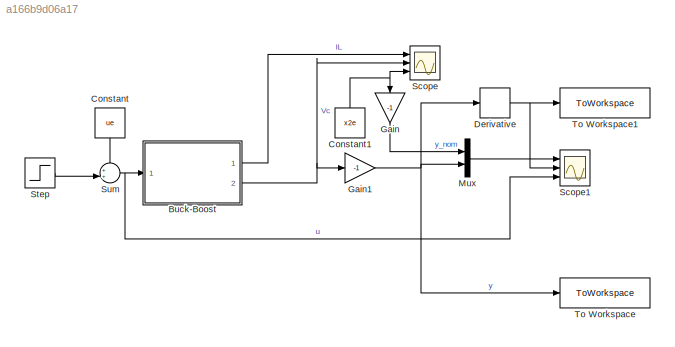
MODEL slx_a166b9d06a17
KIND model
CONFIG AbsTol = auto
CONFIG EnableMultiTasking = off
CONFIG FixedStep = time_step
CONFIG MaxStep = auto
CONFIG MinStep = auto
CONFIG RelTol = 1e-3
CONFIG SampleTimeConstraint = Unconstrained
CONFIG Solver = FixedStepAuto
CONFIG SolverName = FixedStepAuto
CONFIG StartTime = 0.0
CONFIG StopTime = sim_duration
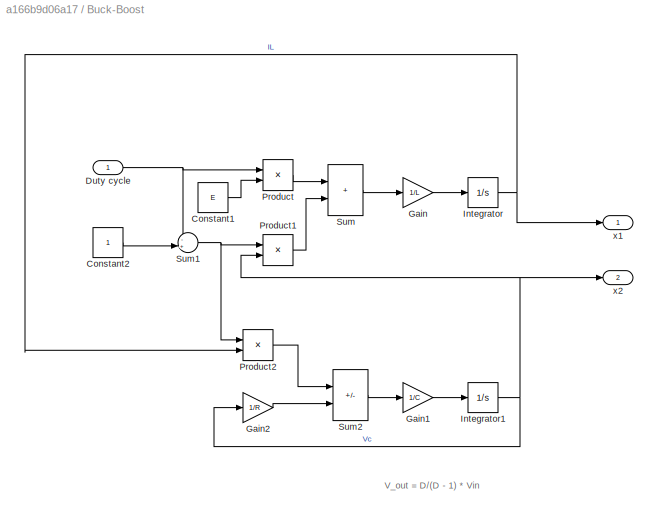
BLOCK [SubSystem] Buck-Boost
  Ports = [1, 2]
  RequestExecContextInheritance = off
BLOCK [Constant] Buck-Boost/Constant1
  Value = E
BLOCK [Constant] Buck-Boost/Constant2
BLOCK [Inport] Buck-Boost/Duty cycle
BLOCK [Gain] Buck-Boost/Gain
  Gain = 1/L
BLOCK [Gain] Buck-Boost/Gain1
  Gain = 1/C
BLOCK [Gain] Buck-Boost/Gain2
  Gain = 1/R
BLOCK [Integrator] Buck-Boost/Integrator
  Ports = [1, 1]
BLOCK [Integrator] Buck-Boost/Integrator1
  Ports = [1, 1]
BLOCK [Product] Buck-Boost/Product
  Ports = [2, 1]
BLOCK [Product] Buck-Boost/Product1
  Ports = [2, 1]
BLOCK [Product] Buck-Boost/Product2
  Ports = [2, 1]
BLOCK [Sum] Buck-Boost/Sum
  IconShape = rectangular
  Ports = [2, 1]
BLOCK [Sum] Buck-Boost/Sum1
  Inputs = -+|
  Ports = [2, 1]
BLOCK [Sum] Buck-Boost/Sum2
  IconShape = rectangular
  Inputs = --
  Ports = [2, 1]
BLOCK [Outport] Buck-Boost/x1
BLOCK [Outport] Buck-Boost/x2
  Port = 2
BLOCK [Constant] Constant
  NameLocation = left
  Value = ue
BLOCK [Constant] Constant1
  NameLocation = right
  Value = x2e
BLOCK [Derivative] Derivative
BLOCK [Gain] Gain
  Gain = -1
  NameLocation = left
BLOCK [Gain] Gain1
  Gain = -1
BLOCK [Mux] Mux
  DisplayOption = bar
  Inputs = 2
  Ports = [2, 1]
BLOCK [Scope] Scope
  Floating = off
  NumInputPorts = 3
  Ports = [3]
  ScopeSpecificationString = Simulink.scopes.TimeScopeBlockCfg('CurrentConfiguration', extmgr.ConfigurationSet(extmgr.Configuration('Core','General UI',true),extmgr.Configuration('Core','Source UI',true),extmgr.Configuration('Sources','WiredSimulink',true),extmgr.Configuration('Visuals','Time Domain',true,'SerializedDisplays',{struct('MinYLimReal','-37.27096','MaxYLimReal','-12.03036','YLabelReal','','MinYLimMag','0.00000','M...<+1391ch>
BLOCK [Scope] Scope1
  Floating = off
  NumInputPorts = 3
  Ports = [3]
  ScopeSpecificationString = Simulink.scopes.TimeScopeBlockCfg('CurrentConfiguration', extmgr.ConfigurationSet(extmgr.Configuration('Core','General UI',true),extmgr.Configuration('Core','Source UI',true),extmgr.Configuration('Sources','WiredSimulink',true,'DataLoggingVariableName','ScopeData1'),extmgr.Configuration('Visuals','Time Domain',true,'SerializedDisplays',{struct('MinYLimReal','-4.49809','MaxYLimReal','40.48278','YLa...<+2777ch>
BLOCK [Step] Step
  After = 0.1*ue
  SampleTime = 0
  Time = t0
BLOCK [Sum] Sum
  Inputs = ++|
  Ports = [2, 1]
BLOCK [ToWorkspace] To Workspace
  FixptAsFi = on
  MaxDataPoints = inf
  Ports = [1]
  SampleTime = -1
  SaveFormat = Timeseries
  VariableName = y
BLOCK [ToWorkspace] To Workspace1
  FixptAsFi = on
  MaxDataPoints = inf
  Ports = [1]
  SampleTime = -1
  SaveFormat = Timeseries
  VariableName = dy_dt
ANNOTATION Buck-Boost: V_out = D/(D - 1) * Vin
LINE Buck-Boost/Constant1:1 -> Buck-Boost/Product:2
LINE Buck-Boost/Constant2:1 -> Buck-Boost/Sum1:2
NET Buck-Boost/Duty cycle:1 -> Buck-Boost/Product:1, Buck-Boost/Sum1:1
LINE Buck-Boost/Gain1:1 -> Buck-Boost/Integrator1:1
LINE Buck-Boost/Gain2:1 -> Buck-Boost/Sum2:2
LINE Buck-Boost/Gain:1 -> Buck-Boost/Integrator:1
NET Buck-Boost/Integrator1:1 -> Buck-Boost/Gain2:1, Buck-Boost/Product1:2, Buck-Boost/x2:1
NET Buck-Boost/Integrator:1 -> Buck-Boost/Product2:2, Buck-Boost/x1:1
LINE Buck-Boost/Product1:1 -> Buck-Boost/Sum:2
LINE Buck-Boost/Product2:1 -> Buck-Boost/Sum2:1
LINE Buck-Boost/Product:1 -> Buck-Boost/Sum:1
NET Buck-Boost/Sum1:1 -> Buck-Boost/Product1:1, Buck-Boost/Product2:1
LINE Buck-Boost/Sum2:1 -> Buck-Boost/Gain1:1
LINE Buck-Boost/Sum:1 -> Buck-Boost/Gain:1
LINE Buck-Boost:1 -> Scope:1
NET Buck-Boost:2 -> Gain1:1, Scope:2
NET Constant1:1 -> Gain:1, Scope:3
LINE Constant:1 -> Sum:1
NET Derivative:1 -> Scope1:2, To Workspace1:1
NET Gain1:1 -> Derivative:1, Mux:2, To Workspace:1
LINE Gain:1 -> Mux:1
LINE Mux:1 -> Scope1:1
LINE Step:1 -> Sum:2
NET Sum:1 -> Buck-Boost:1, Scope1:3
note: NET lines group one-source signal fan-out (src -> all destinations, sorted); 1:1 wires keep LINE
